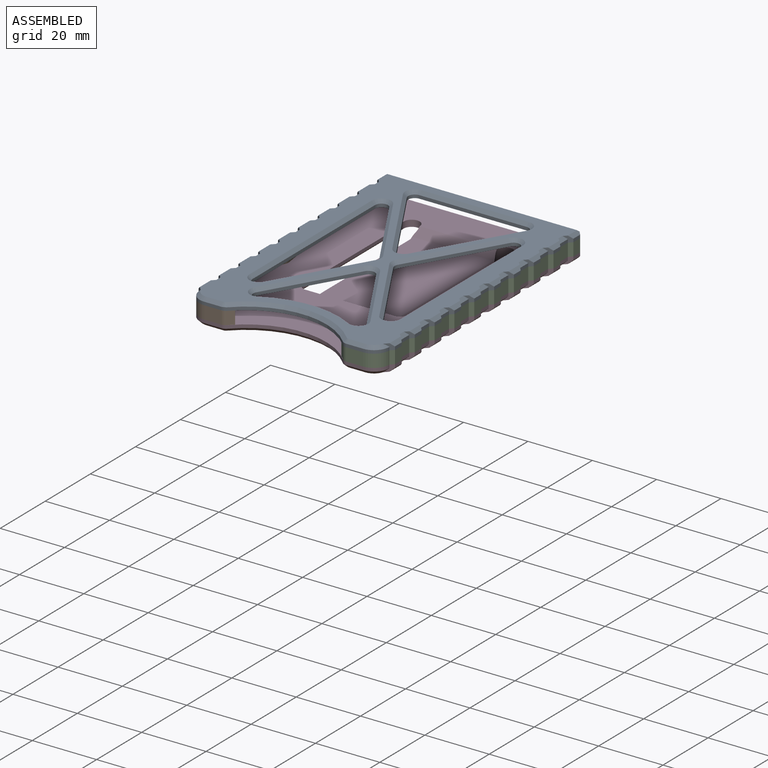
[diagram: assembled view]
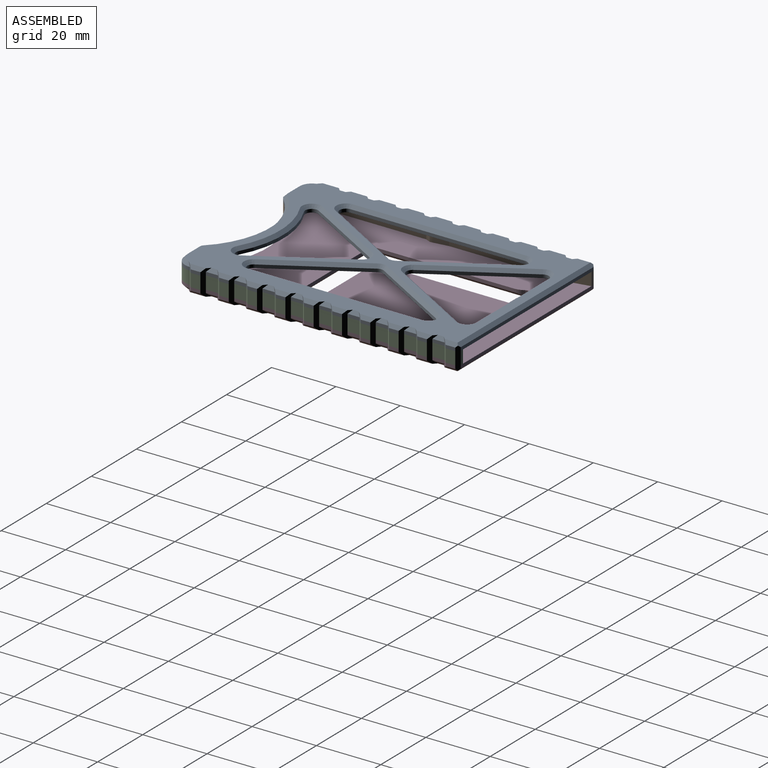
[diagram: assembled view, second angle]
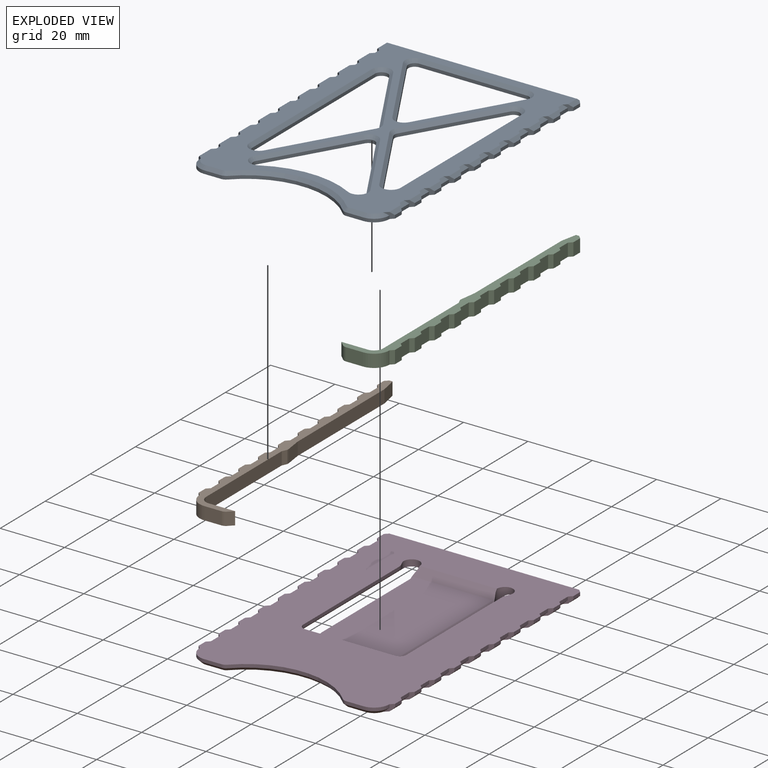
[diagram: exploded view]
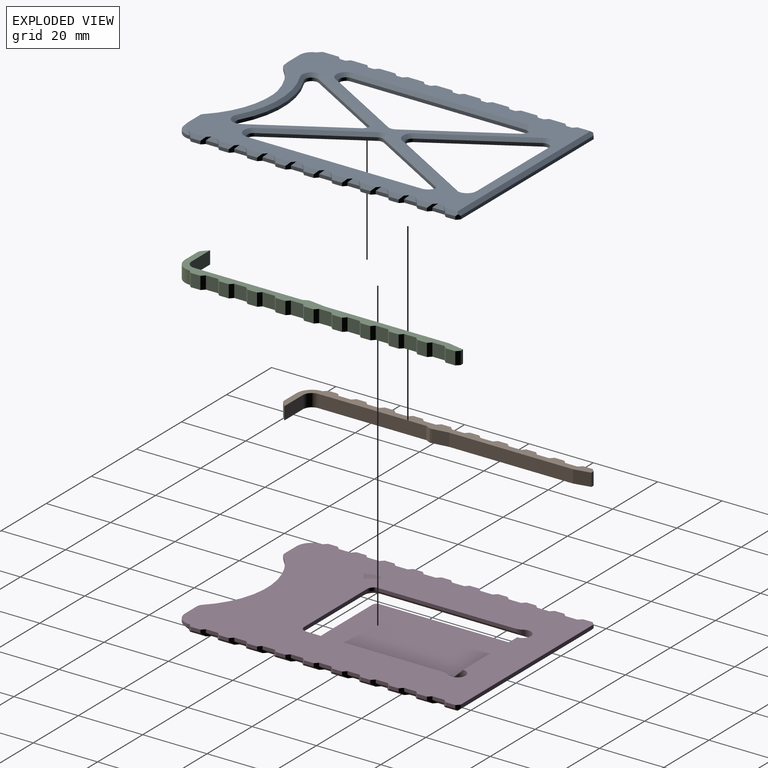
[diagram: exploded view, second angle]
ASSEMBLY  parts=4 mates=3
PART A: 182 faces, bbox 61.2x93.3x11.9 mm
  f0: plane 26.29x15.36mm, normal (-0.86,-0.5,0), area 30.5mm2, adj f99,f106,f107,f159
  f1: cylinder r=30mm len=28.81mm, axis (0,0,-1), area 30mm2, adj f99,f107,f108,f163
  f2: plane 54.3x1mm, normal (1,0,0), area 54.3mm2, adj f99,f109,f110,f169
  f3: plane 27.15x15.87mm, normal (-0.86,-0.5,0), area 31.4mm2, adj f4,f99,f109,f165
  f4: cylinder r=2mm len=2.02mm, axis (0,0,-1), area 2.1mm2, adj f3,f93,f99,f164
  f5: plane 54.3x1mm, normal (-1,0,0), area 54.3mm2, adj f99,f103,f105,f181
  f6: plane 27.15x15.87mm, normal (0.86,0.5,0), area 31.4mm2, adj f99,f103,f104,f177
  f7: plane 33.4x1mm, normal (0,-1,0), area 33.4mm2, adj f99,f100,f102,f175
  f8: plane 28.57x16.7mm, normal (-0.86,0.5,0), area 33.1mm2, adj f99,f100,f101,f171
  f9: plane 59x1mm, normal (0,1,0), area 59mm2, adj f10,f96,f99,f137
  f10: plane 1.5x1mm, normal (-0.71,0.71,0), area 1.8mm2, adj f9,f11,f99,f113,f137
  f11: plane 3x1mm, normal (-1,0,0), area 3mm2, adj f10,f12,f99,f113
  f12: plane 2x2mm, normal (-0.71,-0.71,0), area 2.8mm2, adj f11,f13,f98,f99,f113,f123
  f13: plane 3.8x1mm, normal (-1,0,0), area 3.8mm2, adj f12,f14,f99,f123
  f14: plane 2x2mm, normal (-0.71,0.71,0), area 2.8mm2, adj f13,f15,f98,f99,f114,f123
  f15: plane 3x1mm, normal (-1,0,0), area 3mm2, adj f14,f16,f99,f114
  f16: plane 2x2mm, normal (-0.71,-0.71,0), area 2.8mm2, adj f15,f17,f98,f99,f114,f124
  f17: plane 3.8x1mm, normal (-1,0,0), area 3.8mm2, adj f16,f18,f99,f124
  f18: plane 2x2mm, normal (-0.71,0.71,0), area 2.8mm2, adj f17,f19,f98,f99,f115,f124
  f19: plane 3x1mm, normal (-1,0,0), area 3mm2, adj f18,f20,f99,f115
  f20: plane 2x2mm, normal (-0.71,-0.71,0), area 2.8mm2, adj f19,f21,f98,f99,f115,f125
  f21: plane 3.8x1mm, normal (-1,0,0), area 3.8mm2, adj f20,f22,f99,f125
  f22: plane 2x2mm, normal (-0.71,0.71,0), area 2.8mm2, adj f21,f23,f98,f99,f120,f125
  f23: plane 3x1mm, normal (-1,0,0), area 3mm2, adj f22,f24,f99,f120
  f24: plane 2x2mm, normal (-0.71,-0.71,0), area 2.8mm2, adj f23,f25,f98,f99,f120,f126
  f25: plane 3.8x1mm, normal (-1,0,0), area 3.8mm2, adj f24,f26,f99,f126
  f26: plane 2x2mm, normal (-0.71,0.71,0), area 2.8mm2, adj f25,f27,f98,f99,f122,f126
  f27: plane 3x1mm, normal (-1,0,0), area 3mm2, adj f26,f28,f99,f122
  f28: plane 2x2mm, normal (-0.71,-0.71,0), area 2.8mm2, adj f27,f29,f98,f99,f122,f127
  f29: plane 3.8x1mm, normal (-1,0,0), area 3.8mm2, adj f28,f30,f99,f127
  f30: plane 2x2mm, normal (-0.71,0.71,0), area 2.8mm2, adj f29,f31,f98,f99,f121,f127
  f31: plane 3x1mm, normal (-1,0,0), area 3mm2, adj f30,f32,f99,f121
  f32: plane 2x2mm, normal (-0.71,-0.71,0), area 2.8mm2, adj f31,f33,f98,f99,f121,f128
  f33: plane 3.8x1mm, normal (-1,0,0), area 3.8mm2, adj f32,f34,f99,f128
  f34: plane 2x2mm, normal (-0.71,0.71,0), area 2.8mm2, adj f33,f35,f98,f99,f119,f128
  f35: plane 3x1mm, normal (-1,0,0), area 3mm2, adj f34,f36,f99,f119
  f36: plane 2x2mm, normal (-0.71,-0.71,0), area 2.8mm2, adj f35,f37,f98,f99,f119,f129
  f37: plane 3.8x1mm, normal (-1,0,0), area 3.8mm2, adj f36,f38,f99,f129
  f38: plane 2x2mm, normal (-0.71,0.71,0), area 2.8mm2, adj f37,f39,f98,f99,f118,f129
  f39: plane 3x1mm, normal (-1,0,0), area 3mm2, adj f38,f40,f99,f118
  f40: plane 2x2mm, normal (-0.71,-0.71,0), area 2.8mm2, adj f39,f41,f98,f99,f118,f130
  f41: plane 3.8x1mm, normal (-1,0,0), area 3.8mm2, adj f40,f42,f99,f130
  f42: plane 2x2mm, normal (-0.71,0.71,0), area 2.8mm2, adj f41,f43,f98,f99,f116,f130
  f43: plane 3x1mm, normal (-1,0,0), area 3mm2, adj f42,f44,f99,f116
  f44: plane 2x2mm, normal (-0.71,-0.71,0), area 2.8mm2, adj f43,f45,f98,f99,f116,f131
  f45: plane 3.8x1mm, normal (-1,0,0), area 3.8mm2, adj f44,f46,f99,f131
  f46: plane 2x2mm, normal (-0.71,0.71,0), area 2.8mm2, adj f45,f47,f98,f99,f117,f131
  f47: plane 3x1mm, normal (-1,0,0), area 3mm2, adj f46,f48,f99,f117
  f48: plane 2.42x2.42mm, normal (-0.71,-0.71,0), area 2.9mm2, adj f47,f49,f98,f99,f111,f117
  f49: cylinder r=4.8mm len=4.8mm, axis (0,0,-1), area 7.5mm2, adj f48,f50,f99,f111
  f50: plane 5.31x1mm, normal (0,-1,0), area 5.3mm2, adj f49,f99,f112,f156
  f51: cylinder r=25mm len=35.91mm, axis (0,0,-1), area 40.1mm2, adj f52,f99,f132,f156
  f52: cylinder r=2mm len=1.44mm, axis (0,0,-1), area 1.6mm2, adj f51,f53,f99,f133
  f53: plane 5.31x1mm, normal (0,-1,0), area 5.3mm2, adj f52,f54,f99,f134
  f54: cylinder r=4.8mm len=4.8mm, axis (0,0,-1), area 7.5mm2, adj f53,f55,f99,f135
  f55: plane 2.42x2.42mm, normal (0.71,-0.71,0), area 2.9mm2, adj f54,f56,f98,f99,f135,f155
  f56: plane 3x1mm, normal (1,0,0), area 3mm2, adj f55,f57,f99,f155
  f57: plane 2x2mm, normal (0.71,0.71,0), area 2.8mm2, adj f56,f58,f98,f99,f152,f155
  f58: plane 3.8x1mm, normal (1,0,0), area 3.8mm2, adj f57,f59,f99,f152
  f59: plane 2x2mm, normal (0.71,-0.71,0), area 2.8mm2, adj f58,f60,f98,f99,f152,f154
  f60: plane 3x1mm, normal (1,0,0), area 3mm2, adj f59,f61,f99,f154
  f61: plane 2x2mm, normal (0.71,0.71,0), area 2.8mm2, adj f60,f62,f98,f99,f151,f154
  f62: plane 3.8x1mm, normal (1,0,0), area 3.8mm2, adj f61,f63,f99,f151
  f63: plane 2x2mm, normal (0.71,-0.71,0), area 2.8mm2, adj f62,f64,f98,f99,f151,f153
  f64: plane 3x1mm, normal (1,0,0), area 3mm2, adj f63,f65,f99,f153
  f65: plane 2x2mm, normal (0.71,0.71,0), area 2.8mm2, adj f64,f66,f98,f99,f150,f153
  f66: plane 3.8x1mm, normal (1,0,0), area 3.8mm2, adj f65,f67,f99,f150
  f67: plane 2x2mm, normal (0.71,-0.71,0), area 2.8mm2, adj f66,f68,f98,f99,f149,f150
  f68: plane 3x1mm, normal (1,0,0), area 3mm2, adj f67,f69,f99,f149
  f69: plane 2x2mm, normal (0.71,0.71,0), area 2.8mm2, adj f68,f70,f98,f99,f148,f149
  f70: plane 3.8x1mm, normal (1,0,0), area 3.8mm2, adj f69,f71,f99,f148
  f71: plane 2x2mm, normal (0.71,-0.71,0), area 2.8mm2, adj f70,f72,f98,f99,f147,f148
  f72: plane 3x1mm, normal (1,0,0), area 3mm2, adj f71,f73,f99,f147
  f73: plane 2x2mm, normal (0.71,0.71,0), area 2.8mm2, adj f72,f74,f98,f99,f146,f147
  f74: plane 3.8x1mm, normal (1,0,0), area 3.8mm2, adj f73,f75,f99,f146
  f75: plane 2x2mm, normal (0.71,-0.71,0), area 2.8mm2, adj f74,f76,f98,f99,f145,f146
  f76: plane 3x1mm, normal (1,0,0), area 3mm2, adj f75,f77,f99,f145
  f77: plane 2x2mm, normal (0.71,0.71,0), area 2.8mm2, adj f76,f78,f98,f99,f144,f145
  f78: plane 3.8x1mm, normal (1,0,0), area 3.8mm2, adj f77,f79,f99,f144
  f79: plane 2x2mm, normal (0.71,-0.71,0), area 2.8mm2, adj f78,f80,f98,f99,f143,f144
  f80: plane 3x1mm, normal (1,0,0), area 3mm2, adj f79,f81,f99,f143
  f81: plane 2x2mm, normal (0.71,0.71,0), area 2.8mm2, adj f80,f82,f98,f99,f142,f143
  f82: plane 3.8x1mm, normal (1,0,0), area 3.8mm2, adj f81,f83,f99,f142
  f83: plane 2x2mm, normal (0.71,-0.71,0), area 2.8mm2, adj f82,f84,f98,f99,f141,f142
  f84: plane 3x1mm, normal (1,0,0), area 3mm2, adj f83,f85,f99,f141
  f85: plane 2x2mm, normal (0.71,0.71,0), area 2.8mm2, adj f84,f86,f98,f99,f140,f141
  f86: plane 3.8x1mm, normal (1,0,0), area 3.8mm2, adj f85,f87,f99,f140
  f87: plane 2x2mm, normal (0.71,-0.71,0), area 2.8mm2, adj f86,f88,f98,f99,f139,f140
  f88: plane 3x1mm, normal (1,0,0), area 3mm2, adj f87,f89,f99,f139
  f89: plane 2x2mm, normal (0.71,0.71,0), area 2.8mm2, adj f88,f90,f98,f99,f138,f139
  f90: plane 3.8x1mm, normal (1,0,0), area 3.8mm2, adj f89,f91,f99,f138
  f91: plane 2x2mm, normal (0.71,-0.71,0), area 2.8mm2, adj f90,f92,f98,f99,f136,f138
  f92: plane 3x1mm, normal (1,0,0), area 3mm2, adj f91,f96,f99,f136
  f93: plane 27.15x15.87mm, normal (-0.86,0.5,0), area 31.4mm2, adj f4,f99,f110,f166
  f94: plane 27.15x15.87mm, normal (0.86,-0.5,0), area 31.4mm2, adj f99,f104,f105,f178
  f95: plane 28.57x16.7mm, normal (0.86,0.5,0), area 33.1mm2, adj f99,f101,f102,f172
  f96: plane 1.5x1mm, normal (0.71,0.71,0), area 1.8mm2, adj f9,f92,f99,f136,f137
  f97: plane 26.29x15.36mm, normal (0.86,-0.5,0), area 30.5mm2, adj f99,f106,f108,f160
  f98: plane 87.17x59.17mm, normal (0,0,1), area 1799.7mm2, adj f12,f14,f16,f18,f20,f22,f24,f26
  f99: plane 89x61mm, normal (0,0,-1), area 2545.1mm2, adj f0,f1,f2,f3,f4,f5,f6,f7
  f100: cylinder r=2mm len=3.01mm, axis (0,0,-1), area 4.2mm2, adj f7,f8,f99,f173
  f101: cylinder r=2mm len=3.45mm, axis (0,0,-1), area 4.2mm2, adj f8,f95,f99,f170
  f102: cylinder r=2mm len=3.01mm, axis (0,0,1), area 4.2mm2, adj f7,f95,f99,f174
  f103: cylinder r=2mm len=3.73mm, axis (0,0,1), area 5.2mm2, adj f5,f6,f99,f179
  f104: cylinder r=2mm len=2.02mm, axis (0,0,1), area 2.1mm2, adj f6,f94,f99,f176
  f105: cylinder r=2mm len=3.73mm, axis (0,0,1), area 5.2mm2, adj f5,f94,f99,f180
  f106: cylinder r=2mm len=3.45mm, axis (0,0,-1), area 4.2mm2, adj f0,f97,f99,f158
  f107: cylinder r=2mm len=3.01mm, axis (0,0,-1), area 5.2mm2, adj f0,f1,f99,f161
  f108: cylinder r=2mm len=3.01mm, axis (0,0,-1), area 5.2mm2, adj f1,f97,f99,f162
  f109: cylinder r=2mm len=3.73mm, axis (0,0,-1), area 5.2mm2, adj f2,f3,f99,f167
  f110: cylinder r=2mm len=3.73mm, axis (0,0,-1), area 5.2mm2, adj f2,f93,f99,f168
  f111: cone r=3.8mm half-angle=45deg, axis (0,0,-1), area 8.6mm2, adj f48,f49,f98,f112
  f112: plane 5.56x1.01mm, normal (0,-0.71,0.71), area 7.6mm2, adj f50,f98,f111,f156,f157
  f113: plane 4.5x1mm, normal (-0.71,0,0.71), area 5.3mm2, adj f10,f11,f12,f98,f137
  f114: plane 5x1mm, normal (-0.71,0,0.71), area 5.7mm2, adj f14,f15,f16,f98
  f115: plane 5x1mm, normal (-0.71,0,0.71), area 5.7mm2, adj f18,f19,f20,f98
  f116: plane 5x1mm, normal (-0.71,0,0.71), area 5.7mm2, adj f42,f43,f44,f98
  f117: plane 5x1mm, normal (-0.71,0,0.71), area 5.7mm2, adj f46,f47,f48,f98
  f118: plane 5x1mm, normal (-0.71,0,0.71), area 5.7mm2, adj f38,f39,f40,f98
  f119: plane 5x1mm, normal (-0.71,0,0.71), area 5.7mm2, adj f34,f35,f36,f98
  f120: plane 5x1mm, normal (-0.71,0,0.71), area 5.7mm2, adj f22,f23,f24,f98
  f121: plane 5x1mm, normal (-0.71,0,0.71), area 5.7mm2, adj f30,f31,f32,f98
  f122: plane 5x1mm, normal (-0.71,0,0.71), area 5.7mm2, adj f26,f27,f28,f98
  f123: plane 3.8x1mm, normal (-0.71,0,0.71), area 4mm2, adj f12,f13,f14,f98
  f124: plane 3.8x1mm, normal (-0.71,0,0.71), area 4mm2, adj f16,f17,f18,f98
  f125: plane 3.8x1mm, normal (-0.71,0,0.71), area 4mm2, adj f20,f21,f22,f98
  f126: plane 3.8x1mm, normal (-0.71,0,0.71), area 4mm2, adj f24,f25,f26,f98
  f127: plane 3.8x1mm, normal (-0.71,0,0.71), area 4mm2, adj f28,f29,f30,f98
  f128: plane 3.8x1mm, normal (-0.71,0,0.71), area 4mm2, adj f32,f33,f34,f98
  f129: plane 3.8x1mm, normal (-0.71,0,0.71), area 4mm2, adj f36,f37,f38,f98
  f130: plane 3.8x1mm, normal (-0.71,0,0.71), area 4mm2, adj f40,f41,f42,f98
  f131: plane 3.8x1mm, normal (-0.71,0,0.71), area 4mm2, adj f44,f45,f46,f98
  f132: cone r=25mm half-angle=45deg, axis (0,0,1), area 57.8mm2, adj f51,f98,f133,f156,f157
  f133: cone r=1mm half-angle=45deg, axis (0,0,-1), area 1.7mm2, adj f52,f98,f132,f134
  f134: plane 5.31x1mm, normal (0,-0.71,0.71), area 7.5mm2, adj f53,f98,f133,f135
  f135: cone r=3.8mm half-angle=45deg, axis (0,0,-1), area 8.6mm2, adj f54,f55,f98,f134
  f136: plane 4.5x1mm, normal (0.71,0,0.71), area 5.3mm2, adj f91,f92,f96,f98,f137
  f137: plane 60x1mm, normal (0,0.71,0.71), area 84.1mm2, adj f9,f10,f96,f98,f113,f136
  f138: plane 3.8x1mm, normal (0.71,0,0.71), area 4mm2, adj f89,f90,f91,f98
  f139: plane 5x1mm, normal (0.71,0,0.71), area 5.7mm2, adj f87,f88,f89,f98
  f140: plane 3.8x1mm, normal (0.71,0,0.71), area 4mm2, adj f85,f86,f87,f98
  f141: plane 5x1mm, normal (0.71,0,0.71), area 5.7mm2, adj f83,f84,f85,f98
  f142: plane 3.8x1mm, normal (0.71,0,0.71), area 4mm2, adj f81,f82,f83,f98
  f143: plane 5x1mm, normal (0.71,0,0.71), area 5.7mm2, adj f79,f80,f81,f98
  f144: plane 3.8x1mm, normal (0.71,0,0.71), area 4mm2, adj f77,f78,f79,f98
  f145: plane 5x1mm, normal (0.71,0,0.71), area 5.7mm2, adj f75,f76,f77,f98
  f146: plane 3.8x1mm, normal (0.71,0,0.71), area 4mm2, adj f73,f74,f75,f98
  f147: plane 5x1mm, normal (0.71,0,0.71), area 5.7mm2, adj f71,f72,f73,f98
  f148: plane 3.8x1mm, normal (0.71,0,0.71), area 4mm2, adj f69,f70,f71,f98
  f149: plane 5x1mm, normal (0.71,0,0.71), area 5.7mm2, adj f67,f68,f69,f98
  f150: plane 3.8x1mm, normal (0.71,0,0.71), area 4mm2, adj f65,f66,f67,f98
  f151: plane 3.8x1mm, normal (0.71,0,0.71), area 4mm2, adj f61,f62,f63,f98
  f152: plane 3.8x1mm, normal (0.71,0,0.71), area 4mm2, adj f57,f58,f59,f98
  f153: plane 5x1mm, normal (0.71,0,0.71), area 5.7mm2, adj f63,f64,f65,f98
  f154: plane 5x1mm, normal (0.71,0,0.71), area 5.7mm2, adj f59,f60,f61,f98
  f155: plane 5x1mm, normal (0.71,0,0.71), area 5.7mm2, adj f55,f56,f57,f98
  f156: cylinder r=2mm len=1.44mm, axis (0,0,-1), area 1.6mm2, adj f50,f51,f99,f112,f132,f157
  f157: bspline ~11.9x11.65mm, area 1.6mm2, adj f98,f112,f132,f156
  f158: cone r=3mm half-angle=45deg, axis (0,0,1), area 7.4mm2, adj f98,f106,f159,f160
  f159: plane 26.79x16.23mm, normal (-0.61,-0.36,0.71), area 43.1mm2, adj f0,f98,f158,f161
  f160: plane 26.79x16.23mm, normal (0.61,-0.36,0.71), area 43.1mm2, adj f97,f98,f158,f162
  f161: cone r=3mm half-angle=45deg, axis (0,0,1), area 9.2mm2, adj f98,f107,f159,f163
  f162: cone r=3mm half-angle=45deg, axis (0,0,1), area 9.2mm2, adj f98,f108,f160,f163
  f163: cone r=29mm half-angle=45deg, axis (0,0,-1), area 41.8mm2, adj f1,f98,f161,f162
  f164: cone r=2mm half-angle=45deg, axis (0,0,1), area 3.7mm2, adj f4,f98,f165,f166
  f165: plane 27.65x16.73mm, normal (-0.61,-0.36,0.71), area 44.5mm2, adj f3,f98,f164,f167
  f166: plane 27.65x16.73mm, normal (-0.61,0.36,0.71), area 44.5mm2, adj f93,f98,f164,f168
  f167: cone r=3mm half-angle=45deg, axis (0,0,1), area 9.2mm2, adj f98,f109,f165,f169
  f168: cone r=3mm half-angle=45deg, axis (0,0,1), area 9.2mm2, adj f98,f110,f166,f169
  f169: plane 54.3x1mm, normal (0.71,0,0.71), area 76.8mm2, adj f2,f98,f167,f168
  f170: cone r=3mm half-angle=45deg, axis (0,0,1), area 7.4mm2, adj f98,f101,f171,f172
  f171: plane 29.08x17.56mm, normal (-0.61,0.36,0.71), area 46.8mm2, adj f8,f98,f170,f173
  f172: plane 29.08x17.56mm, normal (0.61,0.36,0.71), area 46.8mm2, adj f95,f98,f170,f174
  f173: cone r=3mm half-angle=45deg, axis (0,0,1), area 7.4mm2, adj f98,f100,f171,f175
  f174: cone r=3mm half-angle=45deg, axis (0,0,1), area 7.4mm2, adj f98,f102,f172,f175
  f175: plane 33.4x1mm, normal (0,-0.71,0.71), area 47.2mm2, adj f7,f98,f173,f174
  f176: cone r=3mm half-angle=45deg, axis (0,0,1), area 3.7mm2, adj f98,f104,f177,f178
  f177: plane 27.65x16.73mm, normal (0.61,0.36,0.71), area 44.5mm2, adj f6,f98,f176,f179
  f178: plane 27.65x16.73mm, normal (0.61,-0.36,0.71), area 44.5mm2, adj f94,f98,f176,f180
  f179: cone r=3mm half-angle=45deg, axis (0,0,1), area 9.2mm2, adj f98,f103,f177,f181
  f180: cone r=3mm half-angle=45deg, axis (0,0,1), area 9.2mm2, adj f98,f105,f178,f181
  f181: plane 54.3x1mm, normal (-0.71,0,0.71), area 76.8mm2, adj f5,f98,f179,f180
PART B: 55 faces, bbox 14x89x4 mm
  f0: plane 4x1mm, normal (-0.71,0.71,0), area 5.7mm2, adj f1,f51,f52,f53
  f1: plane 4x3mm, normal (-1,0,0), area 12mm2, adj f0,f2,f52,f53
  f2: plane 4x1mm, normal (-0.71,-0.71,0), area 5.7mm2, adj f1,f3,f52,f53
  f3: plane 4x3.8mm, normal (-1,0,0), area 15.2mm2, adj f2,f4,f52,f53
  f4: plane 4x1mm, normal (-0.71,0.71,0), area 5.7mm2, adj f3,f5,f52,f53
  f5: plane 4x3mm, normal (-1,0,0), area 12mm2, adj f4,f6,f52,f53
  f6: plane 4x1mm, normal (-0.71,-0.71,0), area 5.7mm2, adj f5,f7,f52,f53
  f7: plane 4x3.8mm, normal (-1,0,0), area 15.2mm2, adj f6,f8,f52,f53
  f8: plane 4x1mm, normal (-0.71,0.71,0), area 5.7mm2, adj f7,f9,f52,f53
  f9: plane 4x3mm, normal (-1,0,0), area 12mm2, adj f8,f10,f52,f53
  f10: plane 4x1mm, normal (-0.71,-0.71,0), area 5.7mm2, adj f9,f11,f52,f53
  f11: plane 4x3.8mm, normal (-1,0,0), area 15.2mm2, adj f10,f12,f52,f53
  f12: plane 4x1mm, normal (-0.71,0.71,0), area 5.7mm2, adj f11,f13,f52,f53
  f13: plane 4x3mm, normal (-1,0,0), area 12mm2, adj f12,f14,f52,f53
  f14: plane 4x1mm, normal (-0.71,-0.71,0), area 5.7mm2, adj f13,f15,f52,f53
  f15: plane 4x3.8mm, normal (-1,0,0), area 15.2mm2, adj f14,f16,f52,f53
  f16: plane 4x1mm, normal (-0.71,0.71,0), area 5.7mm2, adj f15,f17,f52,f53
  f17: plane 4x3mm, normal (-1,0,0), area 12mm2, adj f16,f18,f52,f53
  f18: plane 4x1mm, normal (-0.71,-0.71,0), area 5.7mm2, adj f17,f19,f52,f53
  f19: plane 4x3.8mm, normal (-1,0,0), area 15.2mm2, adj f18,f20,f52,f53
  f20: plane 4x1mm, normal (-0.71,0.71,0), area 5.7mm2, adj f19,f21,f52,f53
  f21: plane 4x3mm, normal (-1,0,0), area 12mm2, adj f20,f22,f52,f53
  f22: plane 4x1mm, normal (-0.71,-0.71,0), area 5.7mm2, adj f21,f23,f52,f53
  f23: plane 4x3.8mm, normal (-1,0,0), area 15.2mm2, adj f22,f24,f52,f53
  f24: plane 4x1mm, normal (-0.71,0.71,0), area 5.7mm2, adj f23,f25,f52,f53
  f25: plane 4x3mm, normal (-1,0,0), area 12mm2, adj f24,f26,f52,f53
  f26: plane 4x1mm, normal (-0.71,-0.71,0), area 5.7mm2, adj f25,f27,f52,f53
  f27: plane 4x3.8mm, normal (-1,0,0), area 15.2mm2, adj f26,f28,f52,f53
  f28: plane 4x1mm, normal (-0.71,0.71,0), area 5.7mm2, adj f27,f29,f52,f53
  f29: plane 4x3mm, normal (-1,0,0), area 12mm2, adj f28,f30,f52,f53
  f30: plane 4x1mm, normal (-0.71,-0.71,0), area 5.7mm2, adj f29,f31,f52,f53
  f31: cylinder r=4.8mm len=4.8mm, axis (0,0,-1), area 30.2mm2, adj f30,f32,f52,f53
  f32: plane 5.31x4mm, normal (0,-1,0), area 21.2mm2, adj f31,f52,f53,f54
  f33: cylinder r=25mm len=4mm, axis (0,0,-1), area 8.1mm2, adj f34,f52,f53,f54
  f34: plane 8.21x4mm, normal (0,1,0), area 32.8mm2, adj f33,f35,f52,f53
  f35: cylinder r=2.8mm len=4mm, axis (0,0,-1), area 17.6mm2, adj f34,f36,f52,f53
  f36: plane 33.59x4mm, normal (1,0,0), area 134.4mm2, adj f35,f37,f52,f53
  f37: plane 4x1.51mm, normal (0.91,-0.42,0), area 6.7mm2, adj f36,f38,f52,f53
  f38: plane 4x0.25mm, normal (1,0,0), area 1mm2, adj f37,f39,f52,f53
  f39: cylinder r=5mm len=4mm, axis (0,0,-1), area 2.8mm2, adj f38,f40,f52,f53
  f40: plane 4.66x4mm, normal (0.99,0.14,0), area 18.8mm2, adj f39,f41,f52,f53
  f41: plane 38.5x4mm, normal (1,0,0), area 154mm2, adj f40,f42,f52,f53
  f42: plane 5x4mm, normal (0.98,0.2,0), area 20.4mm2, adj f41,f43,f52,f53
  f43: plane 4x1mm, normal (0,1,0), area 4mm2, adj f42,f44,f52,f53
  f44: plane 4x1mm, normal (-0.71,0.71,0), area 5.7mm2, adj f43,f45,f52,f53
  f45: plane 4x3mm, normal (-1,0,0), area 12mm2, adj f44,f46,f52,f53
  f46: plane 4x1mm, normal (-0.71,-0.71,0), area 5.7mm2, adj f45,f47,f52,f53
  f47: plane 4x3.8mm, normal (-1,0,0), area 15.2mm2, adj f46,f48,f52,f53
  f48: plane 4x1mm, normal (-0.71,0.71,0), area 5.7mm2, adj f47,f49,f52,f53
  f49: plane 4x3mm, normal (-1,0,0), area 12mm2, adj f48,f50,f52,f53
  f50: plane 4x1mm, normal (-0.71,-0.71,0), area 5.7mm2, adj f49,f51,f52,f53
  f51: plane 4x3.8mm, normal (-1,0,0), area 15.2mm2, adj f0,f50,f52,f53
  f52: plane 89x14.01mm, normal (0,0,1), area 234.7mm2, adj f0,f1,f2,f3,f4,f5,f6,f7
  f53: plane 89x14.01mm, normal (0,0,-1), area 234.7mm2, adj f0,f1,f2,f3,f4,f5,f6,f7
  f54: cylinder r=2mm len=4mm, axis (0,0,-1), area 6.4mm2, adj f32,f33,f52,f53
PART C: same geometry as B
PART D: 166 faces, bbox 61.9x92.1x7.2 mm
  f0: cylinder r=2.5mm len=5mm, axis (0,0,-1), area 26.9mm2, adj f7,f8,f100,f101,f102,f108,f113,f114
  f1: plane 39.26x1.5mm, normal (-1,0,0), area 39.6mm2, adj f2,f6,f100,f107,f116,f164
  f2: cylinder r=2mm len=2mm, axis (0,0,-1), area 4.7mm2, adj f1,f3,f106,f164
  f3: plane 22x1.5mm, normal (0,-1,0), area 33mm2, adj f2,f4,f105,f164
  f4: cylinder r=2mm len=2mm, axis (0,0,-1), area 4.7mm2, adj f3,f5,f104,f164
  f5: plane 39.26x1.5mm, normal (1,0,0), area 39.6mm2, adj f4,f6,f100,f103,f114,f164
  f6: plane 26x0.5mm, normal (0,0.71,0.71), area 18.4mm2, adj f1,f5,f100,f164
  f7: plane 89x61mm, normal (0,0,-1), area 3553.1mm2, adj f0,f9,f10,f11,f12,f13,f14,f15
  f8: plane 87.17x59.17mm, normal (0,0,1), area 3110.2mm2, adj f0,f9,f18,f20,f22,f24,f26,f28
  f9: cylinder r=2.5mm len=5mm, axis (0,0,-1), area 26.9mm2, adj f7,f8,f100,f101,f102,f112,f115,f116
  f10: plane 42.26x1mm, normal (-1,0,0), area 42.3mm2, adj f7,f11,f108,f113
  f11: cylinder r=2mm len=2mm, axis (0,0,-1), area 3.1mm2, adj f7,f10,f12,f109
  f12: plane 28x1mm, normal (0,1,0), area 28mm2, adj f7,f11,f13,f110
  f13: cylinder r=2mm len=2mm, axis (0,0,-1), area 3.1mm2, adj f7,f12,f99,f111
  f14: cylinder r=25mm len=35.91mm, axis (0,0,-1), area 40.1mm2, adj f7,f15,f119,f163
  f15: cylinder r=2mm len=1.44mm, axis (0,0,-1), area 1.6mm2, adj f7,f14,f16,f120
  f16: plane 5.31x1mm, normal (0,-1,0), area 5.3mm2, adj f7,f15,f17,f121
  f17: cylinder r=4.8mm len=4.8mm, axis (0,0,-1), area 7.5mm2, adj f7,f16,f18,f122
  f18: plane 2.42x2.42mm, normal (0.71,-0.71,0), area 2.9mm2, adj f7,f8,f17,f19,f122,f143
  f19: plane 3x1mm, normal (1,0,0), area 3mm2, adj f7,f18,f20,f143
  f20: plane 2x2mm, normal (0.71,0.71,0), area 2.8mm2, adj f7,f8,f19,f21,f142,f143
  f21: plane 3.8x1mm, normal (1,0,0), area 3.8mm2, adj f7,f20,f22,f142
  f22: plane 2x2mm, normal (0.71,-0.71,0), area 2.8mm2, adj f7,f8,f21,f23,f141,f142
  f23: plane 3x1mm, normal (1,0,0), area 3mm2, adj f7,f22,f24,f141
  f24: plane 2x2mm, normal (0.71,0.71,0), area 2.8mm2, adj f7,f8,f23,f25,f140,f141
  f25: plane 3.8x1mm, normal (1,0,0), area 3.8mm2, adj f7,f24,f26,f140
  f26: plane 2x2mm, normal (0.71,-0.71,0), area 2.8mm2, adj f7,f8,f25,f27,f139,f140
  f27: plane 3x1mm, normal (1,0,0), area 3mm2, adj f7,f26,f28,f139
  f28: plane 2x2mm, normal (0.71,0.71,0), area 2.8mm2, adj f7,f8,f27,f29,f138,f139
  f29: plane 3.8x1mm, normal (1,0,0), area 3.8mm2, adj f7,f28,f30,f138
  f30: plane 2x2mm, normal (0.71,-0.71,0), area 2.8mm2, adj f7,f8,f29,f31,f137,f138
  f31: plane 3x1mm, normal (1,0,0), area 3mm2, adj f7,f30,f32,f137
  f32: plane 2x2mm, normal (0.71,0.71,0), area 2.8mm2, adj f7,f8,f31,f33,f136,f137
  f33: plane 3.8x1mm, normal (1,0,0), area 3.8mm2, adj f7,f32,f34,f136
  f34: plane 2x2mm, normal (0.71,-0.71,0), area 2.8mm2, adj f7,f8,f33,f35,f135,f136
  f35: plane 3x1mm, normal (1,0,0), area 3mm2, adj f7,f34,f36,f135
  f36: plane 2x2mm, normal (0.71,0.71,0), area 2.8mm2, adj f7,f8,f35,f37,f134,f135
  f37: plane 3.8x1mm, normal (1,0,0), area 3.8mm2, adj f7,f36,f38,f134
  f38: plane 2x2mm, normal (0.71,-0.71,0), area 2.8mm2, adj f7,f8,f37,f39,f133,f134
  f39: plane 3x1mm, normal (1,0,0), area 3mm2, adj f7,f38,f40,f133
  f40: plane 2x2mm, normal (0.71,0.71,0), area 2.8mm2, adj f7,f8,f39,f41,f132,f133
  f41: plane 3.8x1mm, normal (1,0,0), area 3.8mm2, adj f7,f40,f42,f132
  f42: plane 2x2mm, normal (0.71,-0.71,0), area 2.8mm2, adj f7,f8,f41,f43,f131,f132
  f43: plane 3x1mm, normal (1,0,0), area 3mm2, adj f7,f42,f44,f131
  f44: plane 2x2mm, normal (0.71,0.71,0), area 2.8mm2, adj f7,f8,f43,f45,f130,f131
  f45: plane 3.8x1mm, normal (1,0,0), area 3.8mm2, adj f7,f44,f46,f130
  f46: plane 2x2mm, normal (0.71,-0.71,0), area 2.8mm2, adj f7,f8,f45,f47,f129,f130
  f47: plane 3x1mm, normal (1,0,0), area 3mm2, adj f7,f46,f48,f129
  f48: plane 2x2mm, normal (0.71,0.71,0), area 2.8mm2, adj f7,f8,f47,f49,f128,f129
  f49: plane 3.8x1mm, normal (1,0,0), area 3.8mm2, adj f7,f48,f50,f128
  f50: plane 2x2mm, normal (0.71,-0.71,0), area 2.8mm2, adj f7,f8,f49,f51,f127,f128
  f51: plane 3x1mm, normal (1,0,0), area 3mm2, adj f7,f50,f52,f127
  f52: plane 2x2mm, normal (0.71,0.71,0), area 2.8mm2, adj f7,f8,f51,f53,f126,f127
  f53: plane 3.8x1mm, normal (1,0,0), area 3.8mm2, adj f7,f52,f54,f126
  f54: plane 2x2mm, normal (0.71,-0.71,0), area 2.8mm2, adj f7,f8,f53,f55,f125,f126
  f55: plane 3x1mm, normal (1,0,0), area 3mm2, adj f7,f54,f56,f125
  f56: plane 1.5x1mm, normal (0.71,0.71,0), area 1.8mm2, adj f7,f55,f57,f124,f125
  f57: plane 59x1mm, normal (0,1,0), area 59mm2, adj f7,f56,f58,f124
  f58: plane 1.5x1mm, normal (-0.71,0.71,0), area 1.8mm2, adj f7,f57,f59,f123,f124
  f59: plane 3x1mm, normal (-1,0,0), area 3mm2, adj f7,f58,f60,f123
  f60: plane 2x2mm, normal (-0.71,-0.71,0), area 2.8mm2, adj f7,f8,f59,f61,f123,f161
  f61: plane 3.8x1mm, normal (-1,0,0), area 3.8mm2, adj f7,f60,f62,f161
  f62: plane 2x2mm, normal (-0.71,0.71,0), area 2.8mm2, adj f7,f8,f61,f63,f160,f161
  f63: plane 3x1mm, normal (-1,0,0), area 3mm2, adj f7,f62,f64,f160
  f64: plane 2x2mm, normal (-0.71,-0.71,0), area 2.8mm2, adj f7,f8,f63,f65,f159,f160
  f65: plane 3.8x1mm, normal (-1,0,0), area 3.8mm2, adj f7,f64,f66,f159
  f66: plane 2x2mm, normal (-0.71,0.71,0), area 2.8mm2, adj f7,f8,f65,f67,f158,f159
  f67: plane 3x1mm, normal (-1,0,0), area 3mm2, adj f7,f66,f68,f158
  f68: plane 2x2mm, normal (-0.71,-0.71,0), area 2.8mm2, adj f7,f8,f67,f69,f157,f158
  f69: plane 3.8x1mm, normal (-1,0,0), area 3.8mm2, adj f7,f68,f70,f157
  f70: plane 2x2mm, normal (-0.71,0.71,0), area 2.8mm2, adj f7,f8,f69,f71,f156,f157
  f71: plane 3x1mm, normal (-1,0,0), area 3mm2, adj f7,f70,f72,f156
  f72: plane 2x2mm, normal (-0.71,-0.71,0), area 2.8mm2, adj f7,f8,f71,f73,f155,f156
  f73: plane 3.8x1mm, normal (-1,0,0), area 3.8mm2, adj f7,f72,f74,f155
  f74: plane 2x2mm, normal (-0.71,0.71,0), area 2.8mm2, adj f7,f8,f73,f75,f154,f155
  f75: plane 3x1mm, normal (-1,0,0), area 3mm2, adj f7,f74,f76,f154
  f76: plane 2x2mm, normal (-0.71,-0.71,0), area 2.8mm2, adj f7,f8,f75,f77,f153,f154
  f77: plane 3.8x1mm, normal (-1,0,0), area 3.8mm2, adj f7,f76,f78,f153
  f78: plane 2x2mm, normal (-0.71,0.71,0), area 2.8mm2, adj f7,f8,f77,f79,f152,f153
  f79: plane 3x1mm, normal (-1,0,0), area 3mm2, adj f7,f78,f80,f152
  f80: plane 2x2mm, normal (-0.71,-0.71,0), area 2.8mm2, adj f7,f8,f79,f81,f151,f152
  f81: plane 3.8x1mm, normal (-1,0,0), area 3.8mm2, adj f7,f80,f82,f151
  f82: plane 2x2mm, normal (-0.71,0.71,0), area 2.8mm2, adj f7,f8,f81,f83,f150,f151
  f83: plane 3x1mm, normal (-1,0,0), area 3mm2, adj f7,f82,f84,f150
  f84: plane 2x2mm, normal (-0.71,-0.71,0), area 2.8mm2, adj f7,f8,f83,f85,f149,f150
  f85: plane 3.8x1mm, normal (-1,0,0), area 3.8mm2, adj f7,f84,f86,f149
  f86: plane 2x2mm, normal (-0.71,0.71,0), area 2.8mm2, adj f7,f8,f85,f87,f148,f149
  f87: plane 3x1mm, normal (-1,0,0), area 3mm2, adj f7,f86,f88,f148
  f88: plane 2x2mm, normal (-0.71,-0.71,0), area 2.8mm2, adj f7,f8,f87,f89,f147,f148
  f89: plane 3.8x1mm, normal (-1,0,0), area 3.8mm2, adj f7,f88,f90,f147
  f90: plane 2x2mm, normal (-0.71,0.71,0), area 2.8mm2, adj f7,f8,f89,f91,f146,f147
  f91: plane 3x1mm, normal (-1,0,0), area 3mm2, adj f7,f90,f92,f146
  f92: plane 2x2mm, normal (-0.71,-0.71,0), area 2.8mm2, adj f7,f8,f91,f93,f145,f146
  f93: plane 3.8x1mm, normal (-1,0,0), area 3.8mm2, adj f7,f92,f94,f145
  f94: plane 2x2mm, normal (-0.71,0.71,0), area 2.8mm2, adj f7,f8,f93,f95,f144,f145
  f95: plane 3x1mm, normal (-1,0,0), area 3mm2, adj f7,f94,f96,f144
  f96: plane 2.42x2.42mm, normal (-0.71,-0.71,0), area 2.9mm2, adj f7,f8,f95,f97,f117,f144
  f97: cylinder r=4.8mm len=4.8mm, axis (0,0,-1), area 7.5mm2, adj f7,f96,f98,f117
  f98: plane 5.31x1mm, normal (0,-1,0), area 5.3mm2, adj f7,f97,f118,f163
  f99: plane 42.26x1mm, normal (1,0,0), area 42.3mm2, adj f7,f13,f112,f115
  f100: plane 42.5x26mm, normal (0,0,1), area 1100.7mm2, adj f0,f1,f5,f6,f9,f102,f114,f116
  f101: plane 25.91x2.98mm, normal (0,-0.71,-0.71), area 80.6mm2, adj f0,f7,f9,f103,f107,f114,f116,f165
  f102: plane 29.88x2.88mm, normal (0,0.71,0.71), area 71.7mm2, adj f0,f8,f9,f100
  f103: plane 40.73x0.73mm, normal (0.71,0,-0.71), area 39.9mm2, adj f5,f101,f104,f114,f165
  f104: cone r=2mm half-angle=45deg, axis (0,0,1), area 2.6mm2, adj f4,f103,f105,f165
  f105: plane 22x0.7mm, normal (0,-0.71,-0.71), area 21.8mm2, adj f3,f104,f106,f165
  f106: cone r=2mm half-angle=45deg, axis (0,0,1), area 2.6mm2, adj f2,f105,f107,f165
  f107: plane 40.73x0.73mm, normal (-0.71,0,-0.71), area 39.9mm2, adj f1,f101,f106,f116,f165
  f108: plane 46.33x1.33mm, normal (-0.71,0,0.71), area 62.7mm2, adj f0,f8,f10,f109,f113
  f109: cone r=2mm half-angle=45deg, axis (0,0,1), area 5.6mm2, adj f8,f11,f108,f110
  f110: plane 28x1mm, normal (0,0.71,0.71), area 39.6mm2, adj f8,f12,f109,f111
  f111: cone r=2mm half-angle=45deg, axis (0,0,1), area 5.6mm2, adj f8,f13,f110,f112
  f112: plane 46.33x1.33mm, normal (0.71,0,0.71), area 62.7mm2, adj f8,f9,f99,f111,f115
  f113: cylinder r=5mm len=2.49mm, axis (0,0,-1), area 3.5mm2, adj f0,f7,f10,f108
  f114: cylinder r=5mm len=2.75mm, axis (0,0,-1), area 4.3mm2, adj f0,f5,f100,f101,f103
  f115: cylinder r=5mm len=2.49mm, axis (0,0,-1), area 3.5mm2, adj f7,f9,f99,f112
  f116: cylinder r=5mm len=2.75mm, axis (0,0,-1), area 4.3mm2, adj f1,f9,f100,f101,f107
  f117: cone r=3.8mm half-angle=45deg, axis (0,0,-1), area 8.6mm2, adj f8,f96,f97,f118
  f118: plane 5.56x1.01mm, normal (0,-0.71,0.71), area 7.6mm2, adj f8,f98,f117,f162,f163
  f119: cone r=25mm half-angle=45deg, axis (0,0,1), area 57.8mm2, adj f8,f14,f120,f162,f163
  f120: cone r=1mm half-angle=45deg, axis (0,0,-1), area 1.7mm2, adj f8,f15,f119,f121
  f121: plane 5.31x1mm, normal (0,-0.71,0.71), area 7.5mm2, adj f8,f16,f120,f122
  f122: cone r=3.8mm half-angle=45deg, axis (0,0,-1), area 8.6mm2, adj f8,f17,f18,f121
  f123: plane 4.5x1mm, normal (-0.71,0,0.71), area 5.3mm2, adj f8,f58,f59,f60,f124
  f124: plane 60x1mm, normal (0,0.71,0.71), area 84.1mm2, adj f8,f56,f57,f58,f123,f125
  f125: plane 4.5x1mm, normal (0.71,0,0.71), area 5.3mm2, adj f8,f54,f55,f56,f124
  f126: plane 3.8x1mm, normal (0.71,0,0.71), area 4mm2, adj f8,f52,f53,f54
  f127: plane 5x1mm, normal (0.71,0,0.71), area 5.7mm2, adj f8,f50,f51,f52
  f128: plane 3.8x1mm, normal (0.71,0,0.71), area 4mm2, adj f8,f48,f49,f50
  f129: plane 5x1mm, normal (0.71,0,0.71), area 5.7mm2, adj f8,f46,f47,f48
  f130: plane 3.8x1mm, normal (0.71,0,0.71), area 4mm2, adj f8,f44,f45,f46
  f131: plane 5x1mm, normal (0.71,0,0.71), area 5.7mm2, adj f8,f42,f43,f44
  f132: plane 3.8x1mm, normal (0.71,0,0.71), area 4mm2, adj f8,f40,f41,f42
  f133: plane 5x1mm, normal (0.71,0,0.71), area 5.7mm2, adj f8,f38,f39,f40
  f134: plane 3.8x1mm, normal (0.71,0,0.71), area 4mm2, adj f8,f36,f37,f38
  f135: plane 5x1mm, normal (0.71,0,0.71), area 5.7mm2, adj f8,f34,f35,f36
  f136: plane 3.8x1mm, normal (0.71,0,0.71), area 4mm2, adj f8,f32,f33,f34
  f137: plane 5x1mm, normal (0.71,0,0.71), area 5.7mm2, adj f8,f30,f31,f32
  f138: plane 3.8x1mm, normal (0.71,0,0.71), area 4mm2, adj f8,f28,f29,f30
  f139: plane 5x1mm, normal (0.71,0,0.71), area 5.7mm2, adj f8,f26,f27,f28
  f140: plane 3.8x1mm, normal (0.71,0,0.71), area 4mm2, adj f8,f24,f25,f26
  f141: plane 5x1mm, normal (0.71,0,0.71), area 5.7mm2, adj f8,f22,f23,f24
  f142: plane 3.8x1mm, normal (0.71,0,0.71), area 4mm2, adj f8,f20,f21,f22
  f143: plane 5x1mm, normal (0.71,0,0.71), area 5.7mm2, adj f8,f18,f19,f20
  f144: plane 5x1mm, normal (-0.71,0,0.71), area 5.7mm2, adj f8,f94,f95,f96
  f145: plane 3.8x1mm, normal (-0.71,0,0.71), area 4mm2, adj f8,f92,f93,f94
  f146: plane 5x1mm, normal (-0.71,0,0.71), area 5.7mm2, adj f8,f90,f91,f92
  f147: plane 3.8x1mm, normal (-0.71,0,0.71), area 4mm2, adj f8,f88,f89,f90
  f148: plane 5x1mm, normal (-0.71,0,0.71), area 5.7mm2, adj f8,f86,f87,f88
  f149: plane 3.8x1mm, normal (-0.71,0,0.71), area 4mm2, adj f8,f84,f85,f86
  f150: plane 5x1mm, normal (-0.71,0,0.71), area 5.7mm2, adj f8,f82,f83,f84
  f151: plane 3.8x1mm, normal (-0.71,0,0.71), area 4mm2, adj f8,f80,f81,f82
  f152: plane 5x1mm, normal (-0.71,0,0.71), area 5.7mm2, adj f8,f78,f79,f80
  f153: plane 3.8x1mm, normal (-0.71,0,0.71), area 4mm2, adj f8,f76,f77,f78
  f154: plane 5x1mm, normal (-0.71,0,0.71), area 5.7mm2, adj f8,f74,f75,f76
  f155: plane 3.8x1mm, normal (-0.71,0,0.71), area 4mm2, adj f8,f72,f73,f74
  f156: plane 5x1mm, normal (-0.71,0,0.71), area 5.7mm2, adj f8,f70,f71,f72
  f157: plane 3.8x1mm, normal (-0.71,0,0.71), area 4mm2, adj f8,f68,f69,f70
  f158: plane 5x1mm, normal (-0.71,0,0.71), area 5.7mm2, adj f8,f66,f67,f68
  f159: plane 3.8x1mm, normal (-0.71,0,0.71), area 4mm2, adj f8,f64,f65,f66
  f160: plane 5x1mm, normal (-0.71,0,0.71), area 5.7mm2, adj f8,f62,f63,f64
  f161: plane 3.8x1mm, normal (-0.71,0,0.71), area 4mm2, adj f8,f60,f61,f62
  f162: bspline ~6.57x6.29mm, area 1.6mm2, adj f8,f118,f119,f163
  f163: cylinder r=2mm len=1.44mm, axis (0,0,-1), area 1.6mm2, adj f7,f14,f98,f118,f119,f162
  f164: plane 26x2.5mm, normal (0,0,1), area 63.3mm2, adj f1,f2,f3,f4,f5,f6
  f165: plane 42x24.6mm, normal (0,0,-1), area 1032.5mm2, adj f101,f103,f104,f105,f106,f107
PLACE A at identity
PLACE B t=(-117.83,0.45,-4)mm
PLACE C rot(axis=(0,1,0),180deg) t=(117.83,0.45,0)mm
PLACE D rot(axis=(0,1,0),180deg) t=(-96.95,-12,-4)mm
MATE fastened D.f7 <-> B.f53  axis (0,0,1) through (-29.5,43.5,-4)mm
MATE fastened B.f52 <-> A.f99  axis (0,0,1) through (-30.5,39.5,0)mm
MATE fastened C.f53 <-> A.f99  axis (0,0,1) through (30.5,39.5,0)mm
